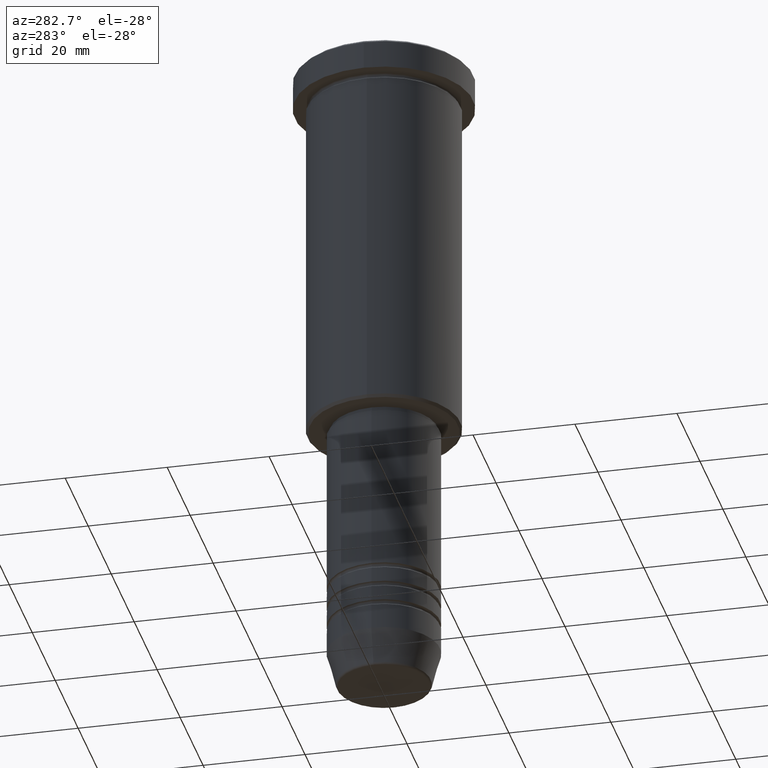
[diagram: clean part render]
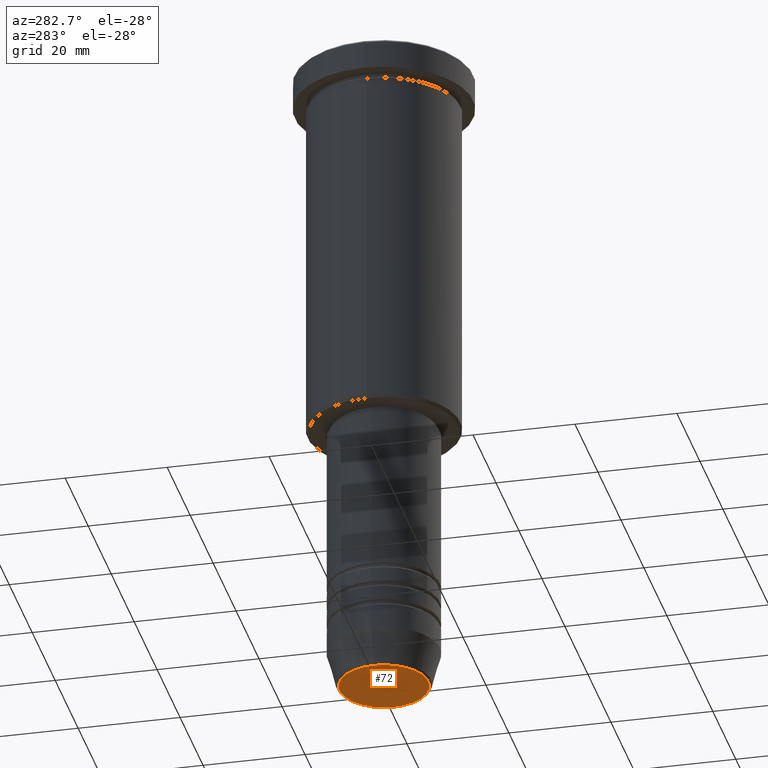
[diagram: same view with one face highlighted and labeled with its STEP entity id]
A machine part, auxiliary view. The second image highlights one B-rep face of the part: STEP entity #72.
In plain terms, the highlighted planar face has unit normal (0, -0, 1).
Its self-contained STEP definition (entity closure, byte-faithful):
#3 = CARTESIAN_POINT ( 'NONE',  ( 0.000000000000000000, 0.000000000000000000, -131.0000000000000000 ) ) ;
#39 = AXIS2_PLACEMENT_3D ( 'NONE', #1028, #1047, #860 ) ;
#72 = ADVANCED_FACE ( 'NONE', ( #1136 ), #223, .F. ) ;
#138 = EDGE_CURVE ( 'NONE', #248, #992, #143, .T. ) ;
#143 = CIRCLE ( 'NONE', #453, 8.740692158992652949 ) ;
#154 = DIRECTION ( 'NONE',  ( 1.000000000000000000, 0.000000000000000000, 0.000000000000000000 ) ) ;
#223 = PLANE ( 'NONE',  #39 ) ;
#248 = VERTEX_POINT ( 'NONE', #1105 ) ;
#255 = CARTESIAN_POINT ( 'NONE',  ( 0.000000000000000000, 0.000000000000000000, -131.0000000000000000 ) ) ;
#262 = ORIENTED_EDGE ( 'NONE', *, *, #1130, .T. ) ;
#427 = EDGE_LOOP ( 'NONE', ( #1129, #262 ) ) ;
#453 = AXIS2_PLACEMENT_3D ( 'NONE', #3, #1092, #655 ) ;
#650 = AXIS2_PLACEMENT_3D ( 'NONE', #255, #977, #154 ) ;
#655 = DIRECTION ( 'NONE',  ( 1.000000000000000000, 0.000000000000000000, 0.000000000000000000 ) ) ;
#801 = CIRCLE ( 'NONE', #650, 8.740692158992652949 ) ;
#860 = DIRECTION ( 'NONE',  ( 1.000000000000000000, 0.000000000000000000, 0.000000000000000000 ) ) ;
#977 = DIRECTION ( 'NONE',  ( 0.000000000000000000, 0.000000000000000000, -1.000000000000000000 ) ) ;
#992 = VERTEX_POINT ( 'NONE', #1141 ) ;
#1028 = CARTESIAN_POINT ( 'NONE',  ( 0.000000000000000000, 0.000000000000000000, -131.0000000000000000 ) ) ;
#1047 = DIRECTION ( 'NONE',  ( 0.000000000000000000, -0.000000000000000000, 1.000000000000000000 ) ) ;
#1092 = DIRECTION ( 'NONE',  ( 0.000000000000000000, 0.000000000000000000, -1.000000000000000000 ) ) ;
#1105 = CARTESIAN_POINT ( 'NONE',  ( 8.740692158992652949, 0.000000000000000000, -131.0000000000000000 ) ) ;
#1129 = ORIENTED_EDGE ( 'NONE', *, *, #138, .T. ) ;
#1130 = EDGE_CURVE ( 'NONE', #992, #248, #801, .T. ) ;
#1136 = FACE_OUTER_BOUND ( 'NONE', #427, .T. ) ;
#1141 = CARTESIAN_POINT ( 'NONE',  ( -8.740692158992652949, 1.099999016768739259E-15, -131.0000000000000000 ) ) ;